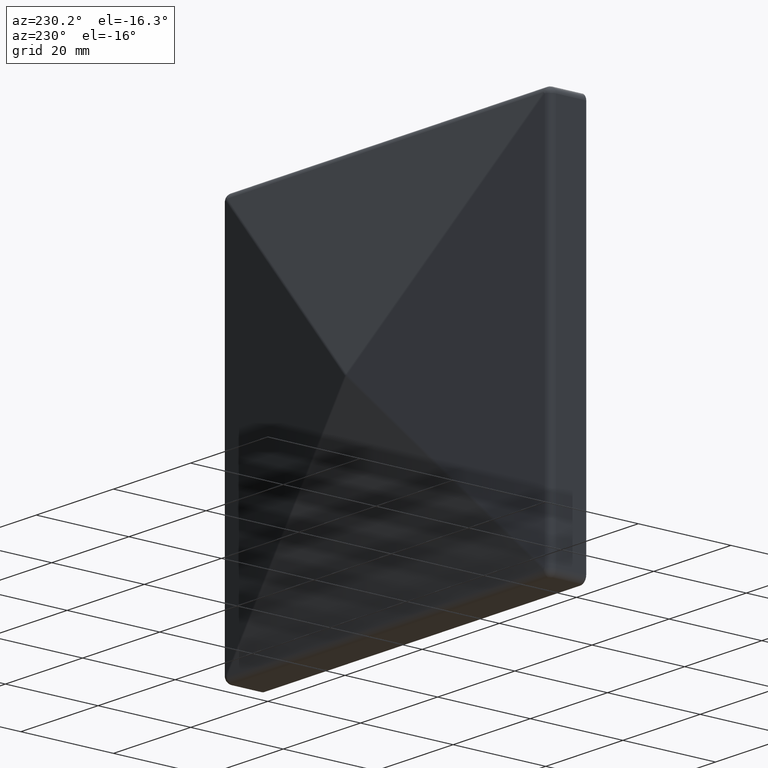
[diagram: clean part render]
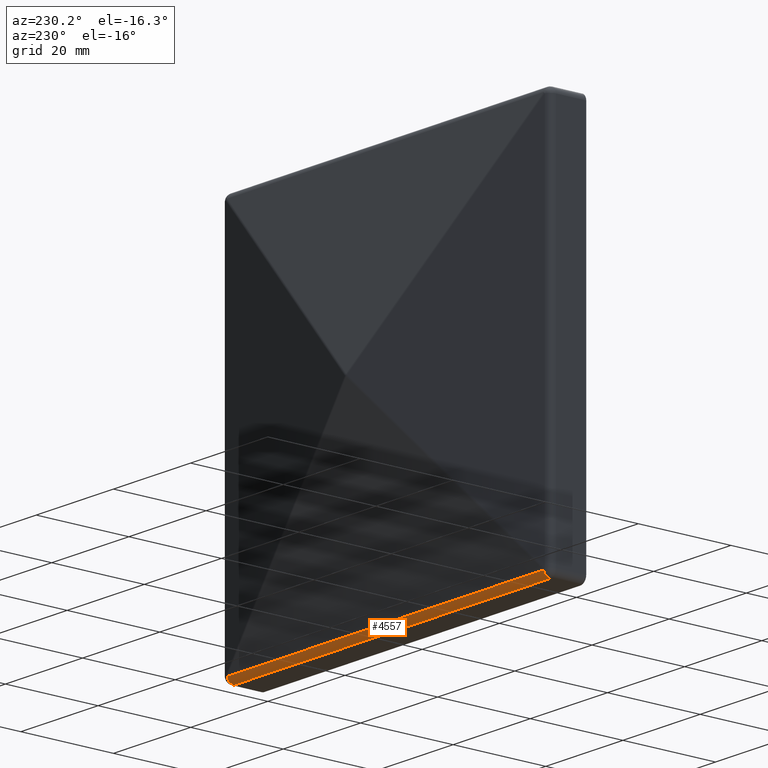
[diagram: same view with one face highlighted and labeled with its STEP entity id]
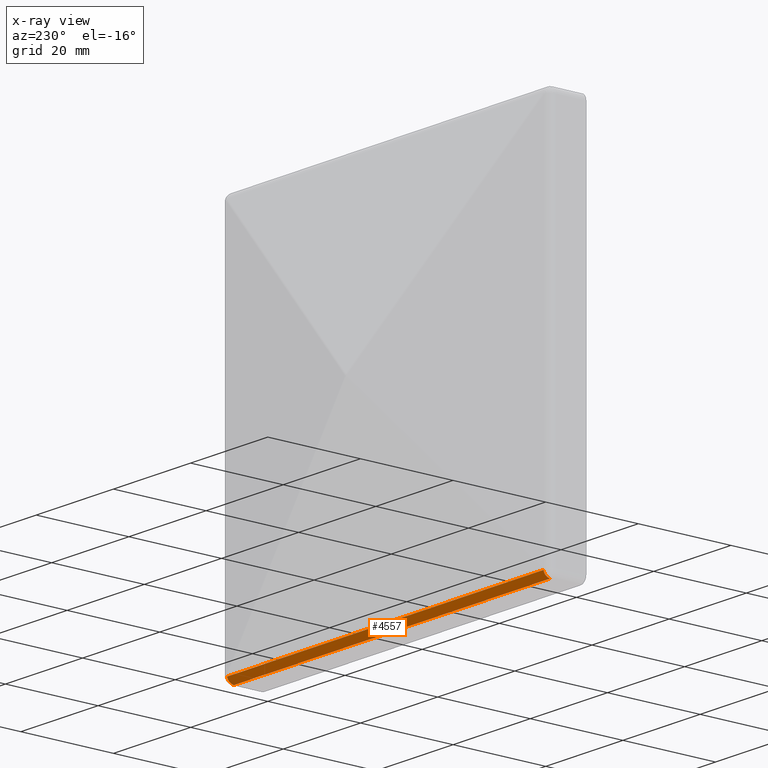
[diagram: x-ray of the same camera — body ghosted, the highlighted face saturated]
A machine part, auxiliary view. The second image highlights one B-rep face of the part: STEP entity #4557.
The next image is the same camera in x-ray: the body ghosted, the highlighted face saturated — about 0% of this face is hidden behind the body in this view.
In plain terms, the highlighted cylindrical surface (edge-blend (fillet) strip) has radius 1.5 mm, axis along (-1, -0, 0).
Its self-contained STEP definition (entity closure, byte-faithful):
#264 = EDGE_LOOP ( 'NONE', ( #3456, #2669, #3085, #4835 ) ) ;
#457 = CARTESIAN_POINT ( 'NONE',  ( -41.00000000000000000, 6.500000000000000000, -40.99999999999999300 ) ) ;
#473 = LINE ( 'NONE', #4426, #11046 ) ;
#756 = VERTEX_POINT ( 'NONE', #3947 ) ;
#1283 = EDGE_CURVE ( 'NONE', #3163, #2707, #9246, .T. ) ;
#1810 = AXIS2_PLACEMENT_3D ( 'NONE', #11127, #10090, #9330 ) ;
#2087 = CARTESIAN_POINT ( 'NONE',  ( 41.00000000000000700, 6.500000000000000000, -41.00000000000001400 ) ) ;
#2669 = ORIENTED_EDGE ( 'NONE', *, *, #3737, .T. ) ;
#2707 = VERTEX_POINT ( 'NONE', #7518 ) ;
#2974 = VERTEX_POINT ( 'NONE', #10657 ) ;
#3085 = ORIENTED_EDGE ( 'NONE', *, *, #3419, .F. ) ;
#3163 = VERTEX_POINT ( 'NONE', #8442 ) ;
#3419 = EDGE_CURVE ( 'NONE', #756, #2974, #473, .T. ) ;
#3456 = ORIENTED_EDGE ( 'NONE', *, *, #1283, .T. ) ;
#3737 = EDGE_CURVE ( 'NONE', #2707, #2974, #10472, .T. ) ;
#3947 = CARTESIAN_POINT ( 'NONE',  ( 41.00000000000000700, 7.968767966144275400, -41.30450067590798100 ) ) ;
#4426 = CARTESIAN_POINT ( 'NONE',  ( 42.50000000000001400, 7.968767966144275400, -41.30450067590798100 ) ) ;
#4557 = ADVANCED_FACE ( 'NONE', ( #8653 ), #9777, .T. ) ;
#4584 = DIRECTION ( 'NONE',  ( -1.000000000000000000, -0.0000000000000000000, 2.220446049250313100E-016 ) ) ;
#4821 = DIRECTION ( 'NONE',  ( 1.000000000000000000, 0.0000000000000000000, -2.220446049250313100E-016 ) ) ;
#4829 = DIRECTION ( 'NONE',  ( -1.000000000000000000, -0.0000000000000000000, 2.220446049250313100E-016 ) ) ;
#4835 = ORIENTED_EDGE ( 'NONE', *, *, #8068, .T. ) ;
#4988 = DIRECTION ( 'NONE',  ( 0.0000000000000000000, 0.0000000000000000000, 1.000000000000000000 ) ) ;
#5247 = CARTESIAN_POINT ( 'NONE',  ( 42.50000000000001400, 6.500000000000000000, -42.50000000000001400 ) ) ;
#7381 = DIRECTION ( 'NONE',  ( 0.0000000000000000000, 0.0000000000000000000, 1.000000000000000000 ) ) ;
#7518 = CARTESIAN_POINT ( 'NONE',  ( -41.00000000000001400, 6.500000000000000000, -42.49999999999999300 ) ) ;
#7838 = CIRCLE ( 'NONE', #10019, 1.500000000000001300 ) ;
#8068 = EDGE_CURVE ( 'NONE', #756, #3163, #7838, .T. ) ;
#8300 = DIRECTION ( 'NONE',  ( -1.000000000000000000, -0.0000000000000000000, 2.220446049250313100E-016 ) ) ;
#8442 = CARTESIAN_POINT ( 'NONE',  ( 41.00000000000000000, 6.500000000000000000, -42.50000000000001400 ) ) ;
#8653 = FACE_OUTER_BOUND ( 'NONE', #264, .T. ) ;
#9246 = LINE ( 'NONE', #5247, #10389 ) ;
#9330 = DIRECTION ( 'NONE',  ( 0.0000000000000000000, 0.0000000000000000000, 1.000000000000000000 ) ) ;
#9777 = CYLINDRICAL_SURFACE ( 'NONE', #1810, 1.500000000000001300 ) ;
#10019 = AXIS2_PLACEMENT_3D ( 'NONE', #2087, #4829, #7381 ) ;
#10090 = DIRECTION ( 'NONE',  ( -1.000000000000000000, -0.0000000000000000000, 2.220446049250313100E-016 ) ) ;
#10217 = AXIS2_PLACEMENT_3D ( 'NONE', #457, #4821, #4988 ) ;
#10389 = VECTOR ( 'NONE', #8300, 1000.000000000000000 ) ;
#10472 = CIRCLE ( 'NONE', #10217, 1.500000000000001300 ) ;
#10657 = CARTESIAN_POINT ( 'NONE',  ( -41.00000000000000000, 7.968767966144275400, -41.30450067590796000 ) ) ;
#11046 = VECTOR ( 'NONE', #4584, 1000.000000000000000 ) ;
#11127 = CARTESIAN_POINT ( 'NONE',  ( 42.50000000000001400, 6.500000000000000000, -41.00000000000001400 ) ) ;